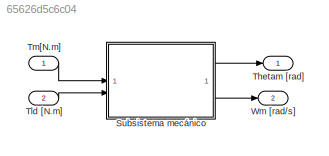
MODEL slx_65626d5c6c04
KIND model
CONFIG AbsTol = auto
CONFIG EnableMultiTasking = off
CONFIG FixedStep = auto
CONFIG MaxStep = auto
CONFIG MinStep = auto
CONFIG RelTol = 1e-3
CONFIG SampleTimeConstraint = Unconstrained
CONFIG SolverName = VariableStepAuto
CONFIG StartTime = 0.0
CONFIG StopTime = 10.0
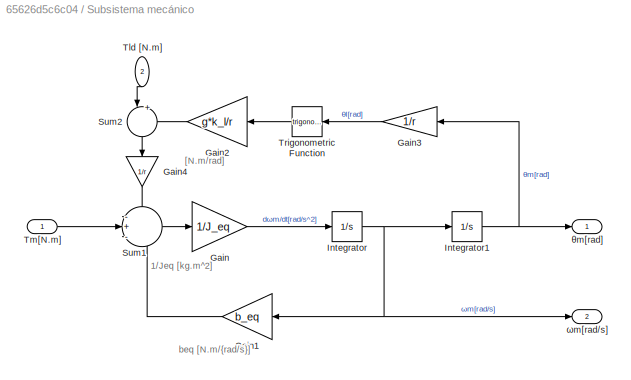
BLOCK [SubSystem] Subsistema mecánico
BLOCK [Gain] Subsistema mecánico/Gain
  Gain = 1/J_eq
BLOCK [Gain] Subsistema mecánico/Gain1
  Gain = b_eq
BLOCK [Gain] Subsistema mecánico/Gain2
  Gain = g*k_l/r
BLOCK [Gain] Subsistema mecánico/Gain3
  Gain = 1/r
BLOCK [Gain] Subsistema mecánico/Gain4
  Gain = 1/r
  NameLocation = left
BLOCK [Integrator] Subsistema mecánico/Integrator
BLOCK [Integrator] Subsistema mecánico/Integrator1
BLOCK [Sum] Subsistema mecánico/Sum1
  Inputs = -+-
BLOCK [Sum] Subsistema mecánico/Sum2
  Inputs = |++
  NameLocation = left
BLOCK [Inport] Subsistema mecánico/Tld [N.m]
  NameLocation = left
  Port = 2
BLOCK [Inport] Subsistema mecánico/Tm[N.m]
BLOCK [Trigonometry] Subsistema mecánico/Trigonometric Function
BLOCK [Outport] Subsistema mecánico/θm[rad]
BLOCK [Outport] Subsistema mecánico/ωm[rad//s]
  Port = 2
BLOCK [Outport] Thetam [rad]
BLOCK [Inport] Tld [N.m]
  Port = 2
BLOCK [Inport] Tm[N.m]
BLOCK [Outport] Wm [rad//s]
  Port = 2
ANNOTATION Subsistema mecánico: 1/Jeq [kg.m^2]
ANNOTATION Subsistema mecánico: [N.m/rad]
ANNOTATION Subsistema mecánico: beq [N.m/{rad/s}]
LINE Subsistema mecánico/Gain1:1 -> Subsistema mecánico/Sum1:3
LINE Subsistema mecánico/Gain2:1 -> Subsistema mecánico/Sum2:2
LINE Subsistema mecánico/Gain3:1 -> Subsistema mecánico/Trigonometric Function:1
LINE Subsistema mecánico/Gain4:1 -> Subsistema mecánico/Sum1:1
LINE Subsistema mecánico/Gain:1 -> Subsistema mecánico/Integrator:1
NET Subsistema mecánico/Integrator1:1 -> Subsistema mecánico/Gain3:1, Subsistema mecánico/θm[rad]:1
NET Subsistema mecánico/Integrator:1 -> Subsistema mecánico/Gain1:1, Subsistema mecánico/Integrator1:1, Subsistema mecánico/ωm[rad//s]:1
LINE Subsistema mecánico/Sum1:1 -> Subsistema mecánico/Gain:1
LINE Subsistema mecánico/Sum2:1 -> Subsistema mecánico/Gain4:1
LINE Subsistema mecánico/Tld [N.m]:1 -> Subsistema mecánico/Sum2:1
LINE Subsistema mecánico/Tm[N.m]:1 -> Subsistema mecánico/Sum1:2
LINE Subsistema mecánico/Trigonometric Function:1 -> Subsistema mecánico/Gain2:1
LINE Subsistema mecánico:1 -> Thetam [rad]:1
LINE Subsistema mecánico:2 -> Wm [rad//s]:1
LINE Tld [N.m]:1 -> Subsistema mecánico:2
LINE Tm[N.m]:1 -> Subsistema mecánico:1
note: NET lines group one-source signal fan-out (src -> all destinations, sorted); 1:1 wires keep LINE
